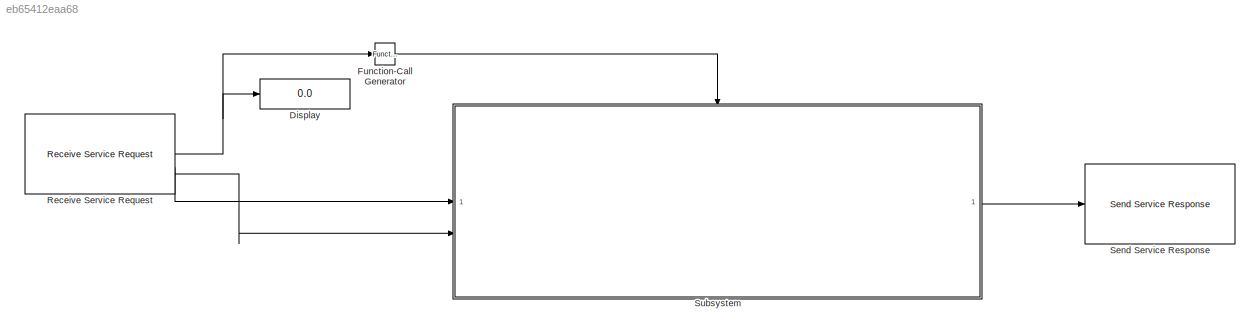
MODEL slx_eb65412eaa68
KIND model
CONFIG AbsTol = auto
CONFIG EnableMultiTasking = off
CONFIG FixedStep = auto
CONFIG MaxStep = auto
CONFIG MinStep = auto
CONFIG RelTol = 1e-3
CONFIG SampleTimeConstraint = Unconstrained
CONFIG SolverName = FixedStepDiscrete
CONFIG StartTime = 0.0
CONFIG StopTime = inf
WORKSPACE source: mxarray member
WORKSPACE SL_ROS_VariableLengthArrays_MaxSizes: object (value not decoded)
BLOCK [Display] Display
  Decimation = 1
BLOCK [Reference] Function-Call Generator  REF=simulink/Ports &
Subsystems/Function-Call
Generator
  SourceBlock = simulink/Ports &\nSubsystems/Function-Call\nGenerator
  SourceType = Function-Call Generator
BLOCK [Reference] Receive Service Request  REF=ros2lib/Receive Service Request  (lib defined in slx_3c1549211f48)
  LibrarySourceBlock = ros2lib/Receive Request
  SourceBlock = ros2lib/Receive Service Request
  SourceType = ROS2 Receive Service Request
BLOCK [Reference] Send Service Response  REF=ros2lib/Send Service Response  (lib defined in slx_3c1549211f48)
  LibrarySourceBlock = ros2lib/Send Response
  SourceBlock = ros2lib/Send Service Response
  SourceType = ROS2 Send Service Response
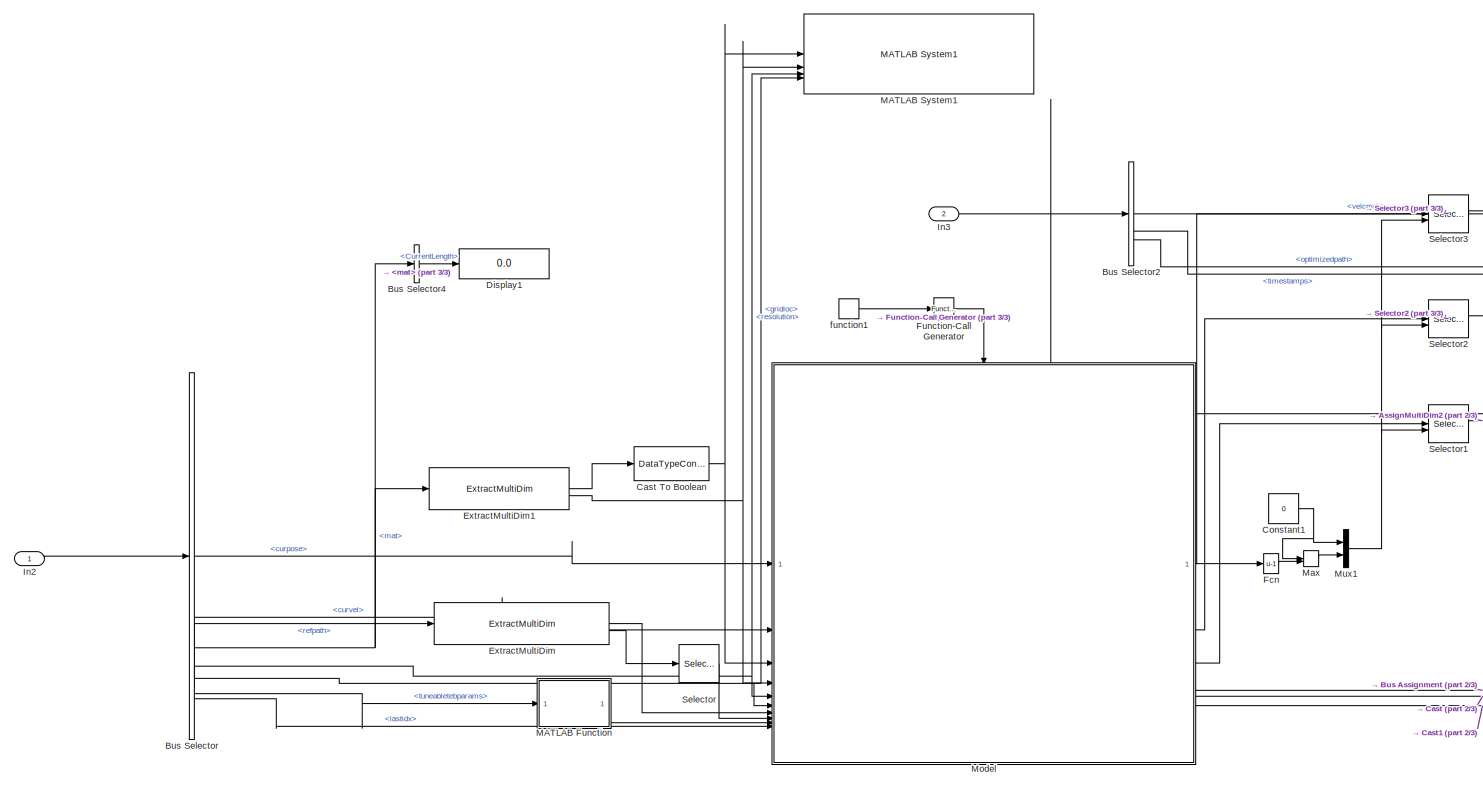
[diagram: Subsystem - part 1/3, center side, full height]
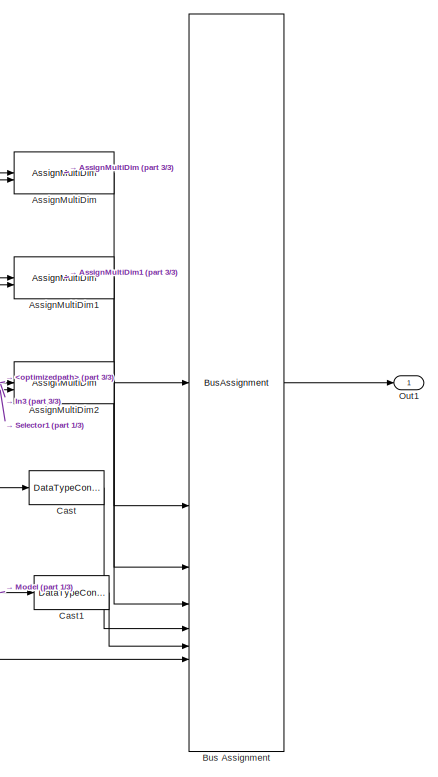
[diagram: Subsystem - part 2/3, right side, full height]
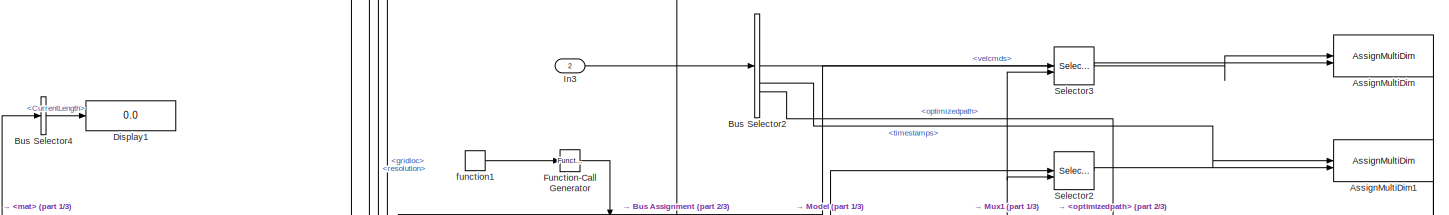
[diagram: Subsystem - part 3/3, central region]
BLOCK [SubSystem] Subsystem
BLOCK [Reference] Subsystem/AssignMultiDim  REF=roshelperlib/AssignMultiDim  (lib defined in slx_3328ea0e13a5)
  SourceBlock = roshelperlib/AssignMultiDim
  SourceType = SubSystem
BLOCK [Reference] Subsystem/AssignMultiDim1  REF=roshelperlib/AssignMultiDim  (lib defined in slx_3328ea0e13a5)
  SourceBlock = roshelperlib/AssignMultiDim
  SourceType = SubSystem
BLOCK [Reference] Subsystem/AssignMultiDim2  REF=roshelperlib/AssignMultiDim  (lib defined in slx_3328ea0e13a5)
  SourceBlock = roshelperlib/AssignMultiDim
  SourceType = SubSystem
BLOCK [BusAssignment] Subsystem/Bus Assignment
  AssignedSignals = velcmds,timestamps,optimizedpath,needlocalreplan,needglobalreplan,nearestidx
BLOCK [BusSelector] Subsystem/Bus Selector
  OutputSignals = curpose,curvel,mat,resolution,gridloc,refpath,tuneabletebparams,lastidx
BLOCK [BusSelector] Subsystem/Bus Selector2
  OutputSignals = velcmds,timestamps,optimizedpath
BLOCK [BusSelector] Subsystem/Bus Selector4
  OutputSignals = data_SL_Info.CurrentLength
BLOCK [DataTypeConversion] Subsystem/Cast
  OutDataTypeStr = boolean
  RndMeth = Floor
  SaturateOnIntegerOverflow = off
BLOCK [DataTypeConversion] Subsystem/Cast To Boolean
  OutDataTypeStr = boolean
  RndMeth = Floor
  SaturateOnIntegerOverflow = off
BLOCK [DataTypeConversion] Subsystem/Cast1
  OutDataTypeStr = boolean
  RndMeth = Floor
  SaturateOnIntegerOverflow = off
BLOCK [Constant] Subsystem/Constant1
  Value = 0
BLOCK [Display] Subsystem/Display1
  Decimation = 1
BLOCK [Reference] Subsystem/ExtractMultiDim  REF=roshelperlib/ExtractMultiDim  (lib defined in slx_3328ea0e13a5)
  SourceBlock = roshelperlib/ExtractMultiDim
BLOCK [Reference] Subsystem/ExtractMultiDim1  REF=roshelperlib/ExtractMultiDim  (lib defined in slx_3328ea0e13a5)
  SourceBlock = roshelperlib/ExtractMultiDim
BLOCK [Fcn] Subsystem/Fcn
  Expr = u-1
BLOCK [Reference] Subsystem/Function-Call Generator  REF=simulink/Ports &
Subsystems/Function-Call
Generator
  SourceBlock = simulink/Ports &\nSubsystems/Function-Call\nGenerator
  SourceType = Function-Call Generator
BLOCK [Inport] Subsystem/In2
BLOCK [Inport] Subsystem/In3
  Port = 2
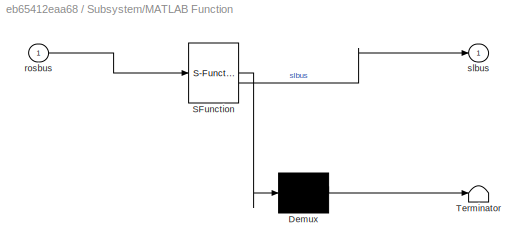
BLOCK [SubSystem] Subsystem/MATLAB Function
  ErrorFcn = Stateflow.Translate.translate
  PermitHierarchicalResolution = ExplicitOnly
  SFBlockType = MATLAB Function
  TreatAsAtomicUnit = on
BLOCK [Demux] Subsystem/MATLAB Function/ Demux 
  Outputs = 1
BLOCK [S-Function] Subsystem/MATLAB Function/ SFunction 
  EnableBusSupport = on
  FunctionName = sf_sfun
  PortCounts = [1 2]
  SFcnIsStateOwnerBlock = off
  SFunctionDeploymentMode = off
  Tag = Stateflow S-Function 2
BLOCK [Terminator] Subsystem/MATLAB Function/ Terminator 
BLOCK [Inport] Subsystem/MATLAB Function/rosbus
BLOCK [Outport] Subsystem/MATLAB Function/slbus
BLOCK [Reference] Subsystem/MATLAB System1  REF=roshelperlib/MATLAB System1  (lib defined in slx_3328ea0e13a5)
  SourceBlock = roshelperlib/MATLAB System1
  SourceType = exampleHelperMapVisualizerSys
BLOCK [MinMax] Subsystem/Max
  Function = max
  Inputs = 2
BLOCK [ModelReference] Subsystem/Model
  ModelNameDialog = planLocalPath.slx
  ModelReferenceVersion = 1.7
  TriggerPortName = function
  TriggerPortStatesWhenEnabling = held
  TriggerPortTriggerType = function-call
BLOCK [Mux] Subsystem/Mux1
  DisplayOption = bar
  Inputs = 2
BLOCK [Outport] Subsystem/Out1
BLOCK [Selector] Subsystem/Selector
  IndexOptions = Index vector (dialog)
  Indices = 1
  InputPortWidth = 2
  OutputSizes = 1
BLOCK [Selector] Subsystem/Selector1
  IndexMode = Zero-based
  IndexOptions = Starting and ending indices (port),Select all
  Indices = [1 3],1
  InputPortWidth = 3
  NumberOfDimensions = 2
  OutputSizes = 1,1
BLOCK [Selector] Subsystem/Selector2
  IndexMode = Zero-based
  IndexOptions = Starting and ending indices (port),Select all
  Indices = [1 3],1
  InputPortWidth = 3
  NumberOfDimensions = 2
  OutputSizes = 1,1
BLOCK [Selector] Subsystem/Selector3
  IndexMode = Zero-based
  IndexOptions = Starting and ending indices (port),Select all
  Indices = [1 3],1
  InputPortWidth = 3
  NumberOfDimensions = 2
  OutputSizes = 1,1
BLOCK [TriggerPort] Subsystem/function1
  ShowOutputPort = on
  StatesWhenEnabling = held
  TriggerType = function-call
  VariantControl = (inherit)
LINE Function-Call Generator:1 -> Subsystem:trigger
NET Receive Service Request:1 -> Display:1, Function-Call Generator:1
LINE Receive Service Request:2 -> Subsystem:1
LINE Receive Service Request:3 -> Subsystem:2
LINE Subsystem/AssignMultiDim1:1 -> Subsystem/Bus Assignment:3
LINE Subsystem/AssignMultiDim2:1 -> Subsystem/Bus Assignment:4
LINE Subsystem/AssignMultiDim:1 -> Subsystem/Bus Assignment:2
LINE Subsystem/Bus Assignment:1 -> Subsystem/Out1:1
LINE Subsystem/Bus Selector2:1 -> Subsystem/AssignMultiDim:1
LINE Subsystem/Bus Selector2:2 -> Subsystem/AssignMultiDim1:1
LINE Subsystem/Bus Selector2:3 -> Subsystem/AssignMultiDim2:1
LINE Subsystem/Bus Selector4:1 -> Subsystem/Display1:1
LINE Subsystem/Bus Selector:1 -> Subsystem/Model:1
LINE Subsystem/Bus Selector:2 -> Subsystem/Model:2
NET Subsystem/Bus Selector:3 -> Subsystem/Bus Selector4:1, Subsystem/ExtractMultiDim1:1
NET Subsystem/Bus Selector:4 -> Subsystem/MATLAB System1:3, Subsystem/Model:5
NET Subsystem/Bus Selector:5 -> Subsystem/MATLAB System1:4, Subsystem/Model:6
LINE Subsystem/Bus Selector:6 -> Subsystem/ExtractMultiDim:1
LINE Subsystem/Bus Selector:7 -> Subsystem/MATLAB Function:1
LINE Subsystem/Bus Selector:8 -> Subsystem/Model:10
NET Subsystem/Cast To Boolean:1 -> Subsystem/MATLAB System1:1, Subsystem/Model:3
LINE Subsystem/Cast1:1 -> Subsystem/Bus Assignment:6
LINE Subsystem/Cast:1 -> Subsystem/Bus Assignment:5
NET Subsystem/Constant1:1 -> Subsystem/Max:1, Subsystem/Mux1:1
LINE Subsystem/ExtractMultiDim1:1 -> Subsystem/Cast To Boolean:1
NET Subsystem/ExtractMultiDim1:2 -> Subsystem/MATLAB System1:2, Subsystem/Model:4
LINE Subsystem/ExtractMultiDim:1 -> Subsystem/Model:7
LINE Subsystem/ExtractMultiDim:2 -> Subsystem/Selector:1
LINE Subsystem/Fcn:1 -> Subsystem/Max:2
LINE Subsystem/Function-Call Generator:1 -> Subsystem/Model:trigger
LINE Subsystem/In2:1 -> Subsystem/Bus Selector:1
NET Subsystem/In3:1 -> Subsystem/Bus Assignment:1, Subsystem/Bus Selector2:1
LINE Subsystem/MATLAB Function:1 -> Subsystem/Model:9
LINE Subsystem/Max:1 -> Subsystem/Mux1:2
LINE Subsystem/Model:1 -> Subsystem/Selector3:1
LINE Subsystem/Model:2 -> Subsystem/Selector2:1
LINE Subsystem/Model:3 -> Subsystem/Selector1:1
LINE Subsystem/Model:4 -> Subsystem/Fcn:1
LINE Subsystem/Model:5 -> Subsystem/Cast:1
LINE Subsystem/Model:6 -> Subsystem/Cast1:1
LINE Subsystem/Model:7 -> Subsystem/Bus Assignment:7
NET Subsystem/Mux1:1 -> Subsystem/Selector1:2, Subsystem/Selector2:2, Subsystem/Selector3:2
LINE Subsystem/Selector1:1 -> Subsystem/AssignMultiDim2:2
LINE Subsystem/Selector2:1 -> Subsystem/AssignMultiDim1:2
LINE Subsystem/Selector3:1 -> Subsystem/AssignMultiDim:2
LINE Subsystem/Selector:1 -> Subsystem/Model:8
LINE Subsystem/function1:1 -> Subsystem/Function-Call Generator:1
LINE Subsystem:1 -> Send Service Response:1
note: NET lines group one-source signal fan-out (src -> all destinations, sorted); 1:1 wires keep LINE
CHART Subsystem/MATLAB Function states=1 transitions=1
  STATE_LABEL 'eML_blk_kernel()'
  STATE_LABEL 'SCRIPT:\nfunction slbus = fcn(rosbus)\n    slbus.LookaheadTime = rosbus.lookaheadtime;\n    slbus.ObstacleSafetyMargin = rosbus.obstaclesafetymargin;\n    slbus.CostWeights_T.Time = rosbus.costweights.time;\n    slbus.CostWeights_T.Smoothness = rosbus.costweights.smoothness;\n    slbus.CostWeights_T.Obstacle = rosbus.costweights.obstacle;\n    slbus.MinTurningRadius = rosbus.minturningradius;\n    slbus.M...<+154ch>'
CHART  states=0 transitions=0
